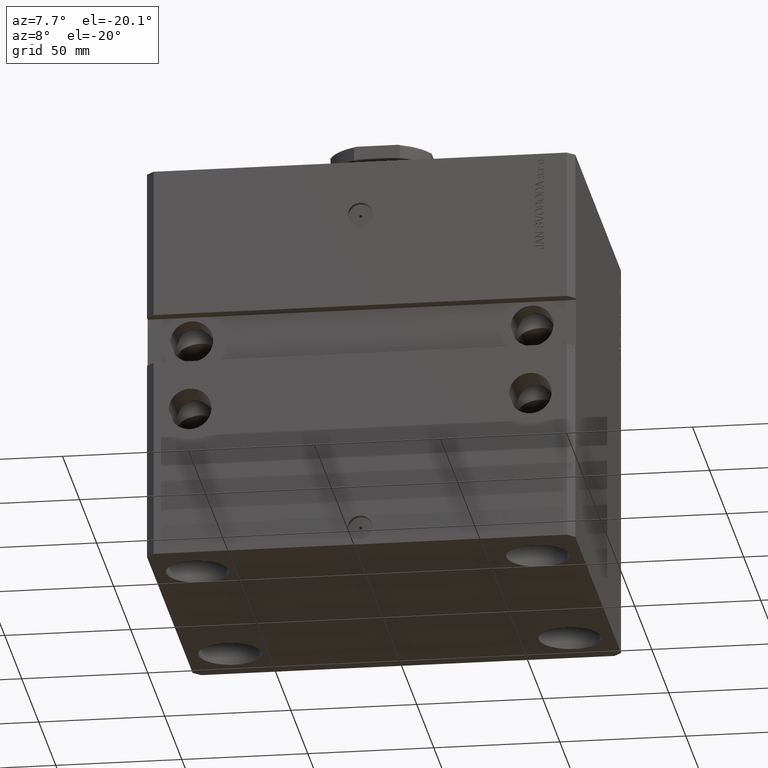
[diagram: clean part render]
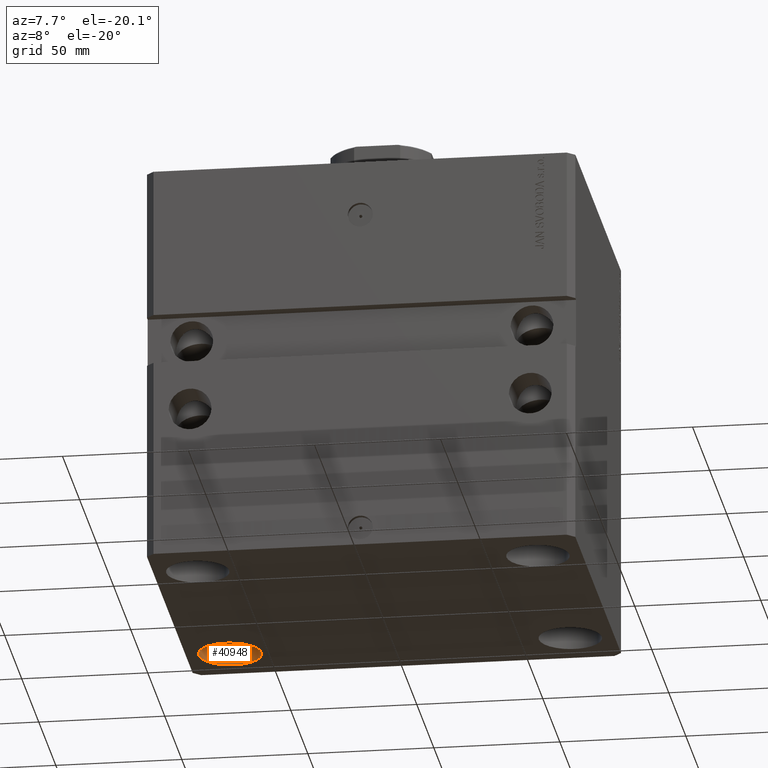
[diagram: same view with one face highlighted and labeled with its STEP entity id]
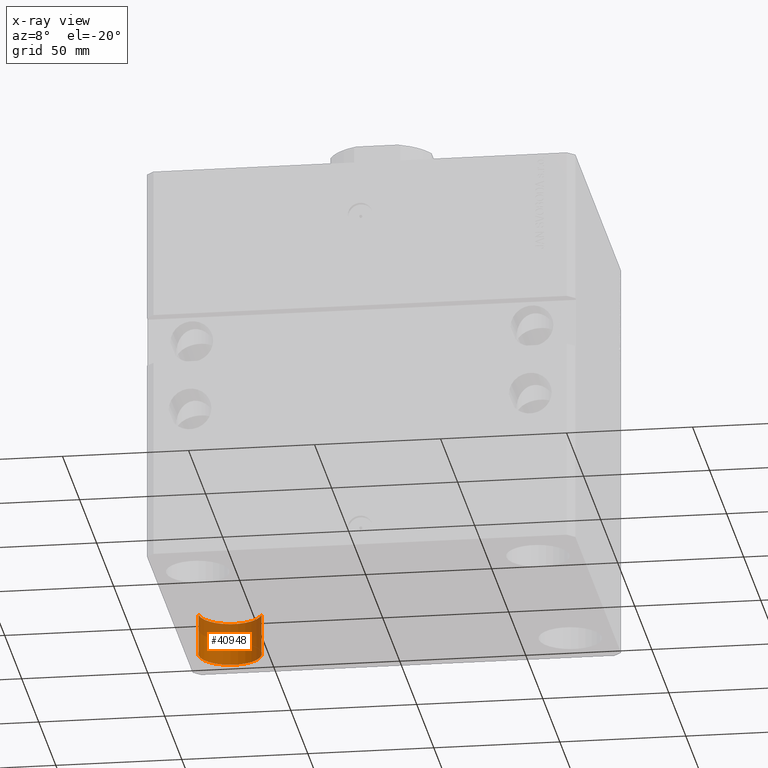
[diagram: x-ray of the same camera — body ghosted, the highlighted face saturated]
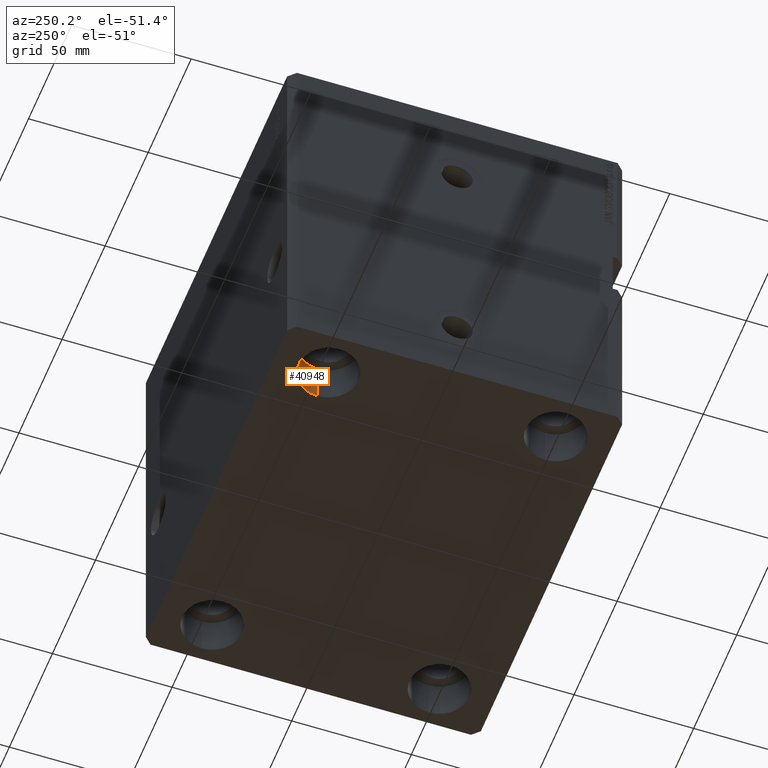
[diagram: same view with one face highlighted and labeled with its STEP entity id]
A machine part, auxiliary view. The second image highlights one B-rep face of the part: STEP entity #40948.
The next image is the same camera in x-ray: the body ghosted, the highlighted face saturated — about 40% of this face is hidden behind the body in this view.
A second angle (auxiliary view) of the same face is appended — the face is thin or edge-on in the first view.
In plain terms, the highlighted cylindrical surface (edge-blend (fillet) strip) has radius 12.5 mm, axis along (-0, -0, -1).
Its self-contained STEP definition (entity closure, byte-faithful):
#1309 = DIRECTION ( 'NONE',  ( 1.000000000000000000, 0.000000000000000000, 0.000000000000000000 ) ) ;
#4095 = CARTESIAN_POINT ( 'NONE',  ( -67.50000000000000000, 47.50000000000000000, -160.0000000000000000 ) ) ;
#4983 = DIRECTION ( 'NONE',  ( -0.000000000000000000, -0.000000000000000000, -1.000000000000000000 ) ) ;
#5911 = CYLINDRICAL_SURFACE ( 'NONE', #20976, 12.49999999999999645 ) ;
#7508 = AXIS2_PLACEMENT_3D ( 'NONE', #35933, #18660, #43410 ) ;
#7587 = CARTESIAN_POINT ( 'NONE',  ( -80.00000000000000000, 47.50000000000000000, -160.0000000000000000 ) ) ;
#12034 = CARTESIAN_POINT ( 'NONE',  ( -55.00000000000000711, 47.50000000000000000, -143.0000000000000284 ) ) ;
#13503 = VERTEX_POINT ( 'NONE', #29811 ) ;
#14658 = CARTESIAN_POINT ( 'NONE',  ( -80.00000000000000000, 47.50000000000000000, -143.0000000000000284 ) ) ;
#14891 = LINE ( 'NONE', #14658, #39403 ) ;
#15549 = LINE ( 'NONE', #12034, #39599 ) ;
#15911 = VERTEX_POINT ( 'NONE', #35805 ) ;
#16002 = DIRECTION ( 'NONE',  ( -1.000000000000000000, 0.000000000000000000, 0.000000000000000000 ) ) ;
#16921 = DIRECTION ( 'NONE',  ( -0.000000000000000000, -0.000000000000000000, -1.000000000000000000 ) ) ;
#17530 = ORIENTED_EDGE ( 'NONE', *, *, #41636, .T. ) ;
#18660 = DIRECTION ( 'NONE',  ( -0.000000000000000000, -0.000000000000000000, 1.000000000000000000 ) ) ;
#20976 = AXIS2_PLACEMENT_3D ( 'NONE', #23474, #16921, #16002 ) ;
#23419 = ORIENTED_EDGE ( 'NONE', *, *, #30743, .T. ) ;
#23474 = CARTESIAN_POINT ( 'NONE',  ( -67.50000000000000000, 47.50000000000000000, -143.0000000000000284 ) ) ;
#26098 = DIRECTION ( 'NONE',  ( -0.000000000000000000, -0.000000000000000000, 1.000000000000000000 ) ) ;
#27668 = CIRCLE ( 'NONE', #7508, 12.49999999999999645 ) ;
#28445 = AXIS2_PLACEMENT_3D ( 'NONE', #4095, #26098, #1309 ) ;
#29811 = CARTESIAN_POINT ( 'NONE',  ( -55.00000000000000711, 47.50000000000000000, -160.0000000000000000 ) ) ;
#30743 = EDGE_CURVE ( 'NONE', #35686, #40154, #14891, .T. ) ;
#31153 = FACE_OUTER_BOUND ( 'NONE', #37821, .T. ) ;
#32222 = ORIENTED_EDGE ( 'NONE', *, *, #42646, .F. ) ;
#35686 = VERTEX_POINT ( 'NONE', #44812 ) ;
#35805 = CARTESIAN_POINT ( 'NONE',  ( -55.00000000000000711, 47.50000000000000000, -143.0000000000000284 ) ) ;
#35933 = CARTESIAN_POINT ( 'NONE',  ( -67.50000000000000000, 47.50000000000000000, -143.0000000000000284 ) ) ;
#37821 = EDGE_LOOP ( 'NONE', ( #40946, #17530, #23419, #32222 ) ) ;
#39403 = VECTOR ( 'NONE', #43370, 1000.000000000000000 ) ;
#39599 = VECTOR ( 'NONE', #4983, 1000.000000000000000 ) ;
#40154 = VERTEX_POINT ( 'NONE', #7587 ) ;
#40829 = EDGE_CURVE ( 'NONE', #15911, #13503, #15549, .T. ) ;
#40946 = ORIENTED_EDGE ( 'NONE', *, *, #40829, .F. ) ;
#40948 = ADVANCED_FACE ( 'NONE', ( #31153 ), #5911, .F. ) ;
#41636 = EDGE_CURVE ( 'NONE', #15911, #35686, #27668, .T. ) ;
#42625 = CIRCLE ( 'NONE', #28445, 12.49999999999999645 ) ;
#42646 = EDGE_CURVE ( 'NONE', #13503, #40154, #42625, .T. ) ;
#43370 = DIRECTION ( 'NONE',  ( -0.000000000000000000, -0.000000000000000000, -1.000000000000000000 ) ) ;
#43410 = DIRECTION ( 'NONE',  ( 1.000000000000000000, 0.000000000000000000, 0.000000000000000000 ) ) ;
#44812 = CARTESIAN_POINT ( 'NONE',  ( -80.00000000000000000, 47.50000000000000000, -143.0000000000000284 ) ) ;